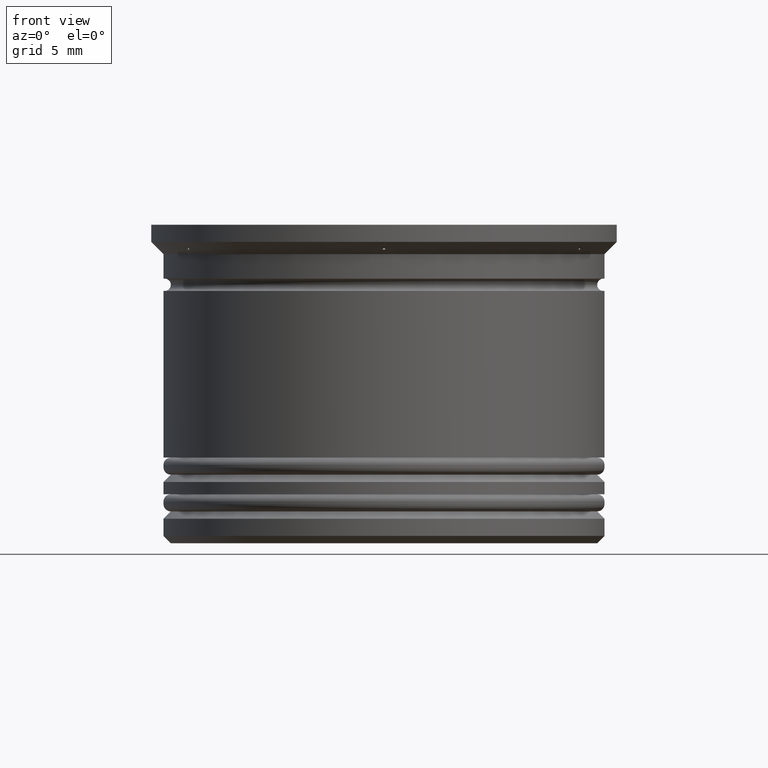
[diagram: clean part render]
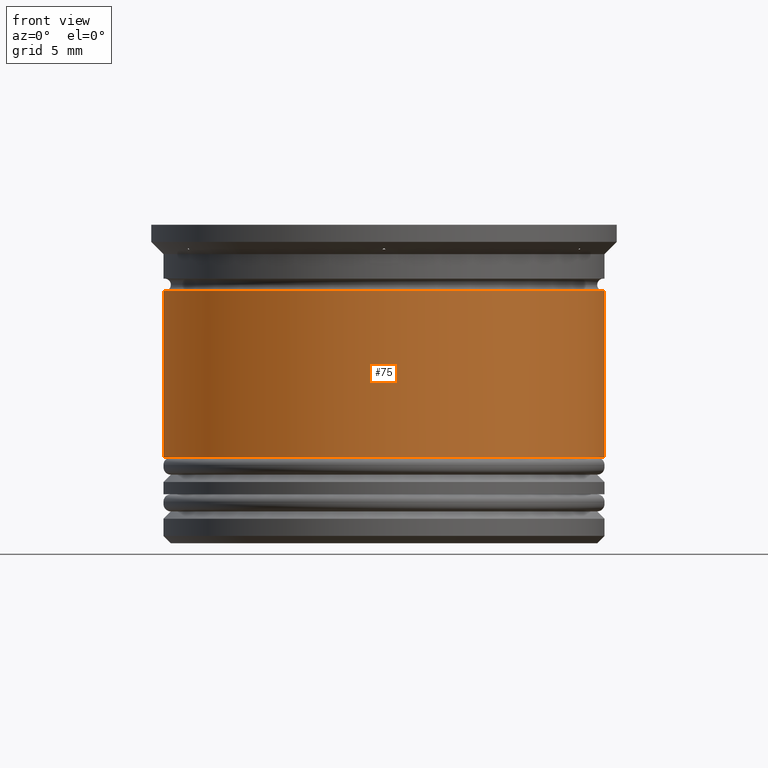
[diagram: same view with one face highlighted and labeled with its STEP entity id]
A machine part, front view. The second image highlights one B-rep face of the part: STEP entity #75.
In plain terms, the highlighted cylindrical surface (partial cylindrical patch) has radius 9 mm, axis along (-0, -0, 1).
Its self-contained STEP definition (entity closure, byte-faithful):
#4 = VERTEX_POINT ( 'NONE', #1005 ) ;
#75 = ADVANCED_FACE ( 'NONE', ( #1210 ), #550, .T. ) ;
#77 = ORIENTED_EDGE ( 'NONE', *, *, #1917, .F. ) ;
#124 = ORIENTED_EDGE ( 'NONE', *, *, #325, .F. ) ;
#173 = LINE ( 'NONE', #551, #1534 ) ;
#185 = VERTEX_POINT ( 'NONE', #251 ) ;
#230 = VERTEX_POINT ( 'NONE', #1611 ) ;
#251 = CARTESIAN_POINT ( 'NONE',  ( 8.999999999999998224, 0.000000000000000000, -2.700000000000000178 ) ) ;
#268 = AXIS2_PLACEMENT_3D ( 'NONE', #1657, #2160, #660 ) ;
#307 = AXIS2_PLACEMENT_3D ( 'NONE', #1873, #1042, #390 ) ;
#325 = EDGE_CURVE ( 'NONE', #230, #185, #376, .T. ) ;
#373 = CARTESIAN_POINT ( 'NONE',  ( 0.000000000000000000, 0.000000000000000000, -9.500000000000000000 ) ) ;
#376 = CIRCLE ( 'NONE', #268, 8.999999999999998224 ) ;
#390 = DIRECTION ( 'NONE',  ( 1.000000000000000000, 0.000000000000000000, 0.000000000000000000 ) ) ;
#550 = CYLINDRICAL_SURFACE ( 'NONE', #307, 9.000000000000000000 ) ;
#551 = CARTESIAN_POINT ( 'NONE',  ( -9.000000000000000000, 1.102182119232617714E-15, 0.000000000000000000 ) ) ;
#660 = DIRECTION ( 'NONE',  ( 1.000000000000000000, 0.000000000000000000, 0.000000000000000000 ) ) ;
#696 = AXIS2_PLACEMENT_3D ( 'NONE', #373, #854, #845 ) ;
#701 = EDGE_CURVE ( 'NONE', #4, #185, #1833, .T. ) ;
#746 = ORIENTED_EDGE ( 'NONE', *, *, #701, .T. ) ;
#845 = DIRECTION ( 'NONE',  ( 1.000000000000000000, 0.000000000000000000, 0.000000000000000000 ) ) ;
#854 = DIRECTION ( 'NONE',  ( -0.000000000000000000, -0.000000000000000000, 1.000000000000000000 ) ) ;
#909 = VERTEX_POINT ( 'NONE', #951 ) ;
#951 = CARTESIAN_POINT ( 'NONE',  ( -9.000000000000001776, 1.102182119232617911E-15, -9.500000000000000000 ) ) ;
#1005 = CARTESIAN_POINT ( 'NONE',  ( 9.000000000000001776, 0.000000000000000000, -9.500000000000000000 ) ) ;
#1042 = DIRECTION ( 'NONE',  ( -0.000000000000000000, -0.000000000000000000, 1.000000000000000000 ) ) ;
#1125 = ORIENTED_EDGE ( 'NONE', *, *, #1489, .T. ) ;
#1210 = FACE_OUTER_BOUND ( 'NONE', #1331, .T. ) ;
#1308 = DIRECTION ( 'NONE',  ( -0.000000000000000000, -0.000000000000000000, 1.000000000000000000 ) ) ;
#1331 = EDGE_LOOP ( 'NONE', ( #77, #1125, #746, #124 ) ) ;
#1367 = CIRCLE ( 'NONE', #696, 9.000000000000001776 ) ;
#1489 = EDGE_CURVE ( 'NONE', #909, #4, #1367, .T. ) ;
#1496 = DIRECTION ( 'NONE',  ( -0.000000000000000000, -0.000000000000000000, 1.000000000000000000 ) ) ;
#1534 = VECTOR ( 'NONE', #1496, 1000.000000000000000 ) ;
#1611 = CARTESIAN_POINT ( 'NONE',  ( -8.999999999999998224, 1.102182119232617714E-15, -2.700000000000000178 ) ) ;
#1657 = CARTESIAN_POINT ( 'NONE',  ( 0.000000000000000000, 0.000000000000000000, -2.700000000000000178 ) ) ;
#1662 = CARTESIAN_POINT ( 'NONE',  ( 9.000000000000000000, 0.000000000000000000, 0.000000000000000000 ) ) ;
#1737 = VECTOR ( 'NONE', #1308, 1000.000000000000000 ) ;
#1833 = LINE ( 'NONE', #1662, #1737 ) ;
#1873 = CARTESIAN_POINT ( 'NONE',  ( 0.000000000000000000, 0.000000000000000000, 0.000000000000000000 ) ) ;
#1917 = EDGE_CURVE ( 'NONE', #909, #230, #173, .T. ) ;
#2160 = DIRECTION ( 'NONE',  ( -0.000000000000000000, -0.000000000000000000, 1.000000000000000000 ) ) ;